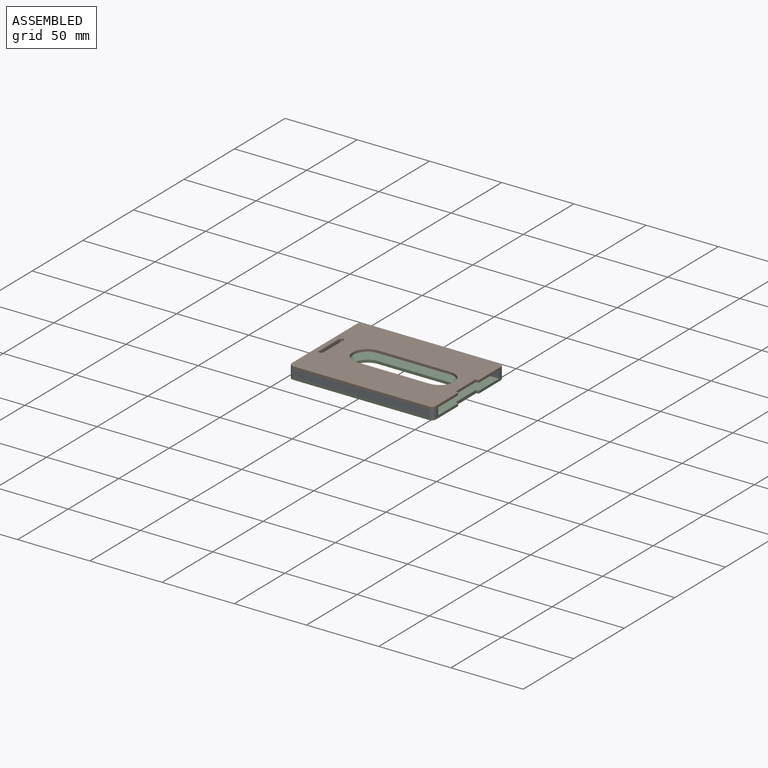
[diagram: assembled view]
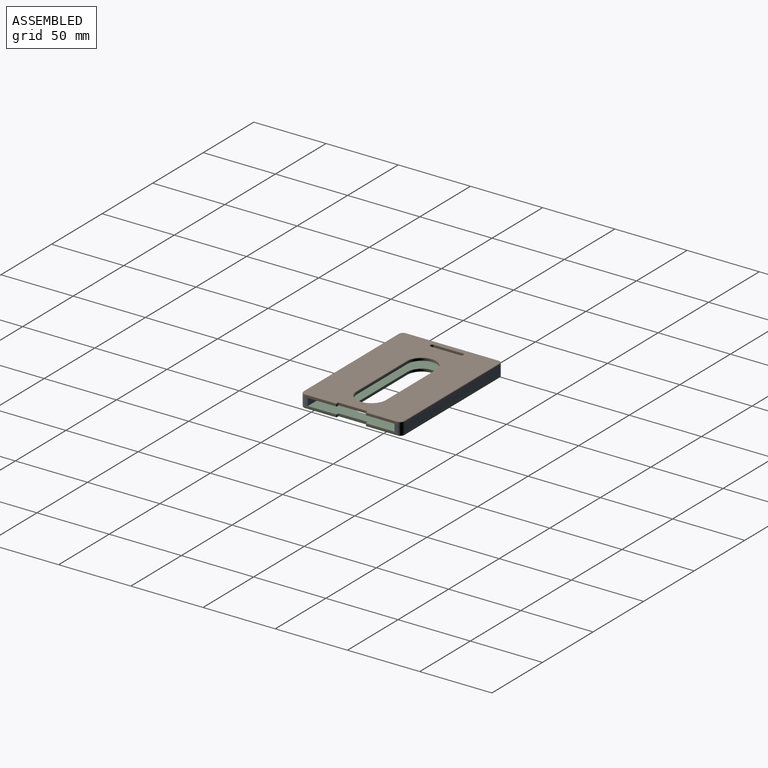
[diagram: assembled view, second angle]
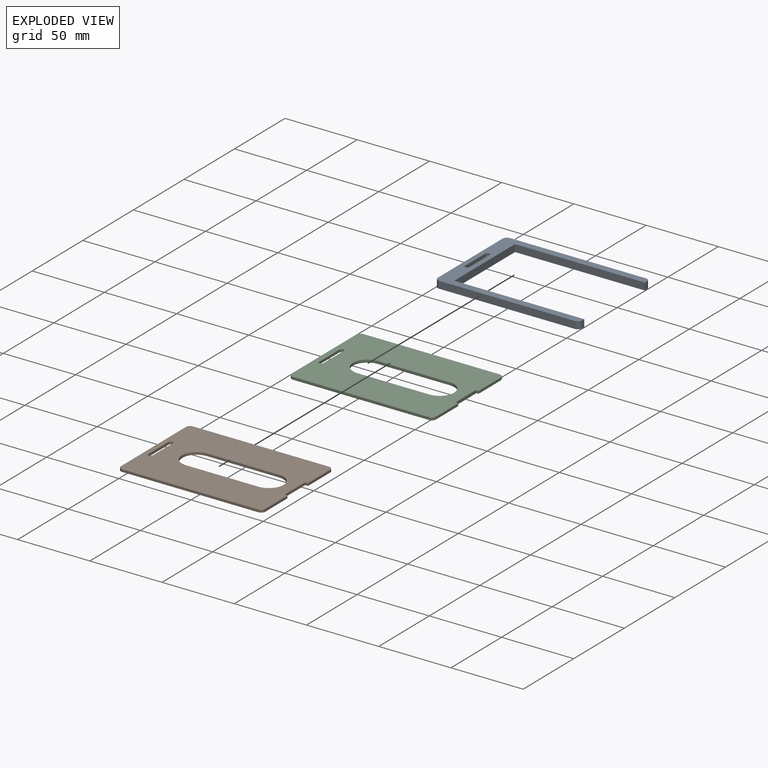
[diagram: exploded view]
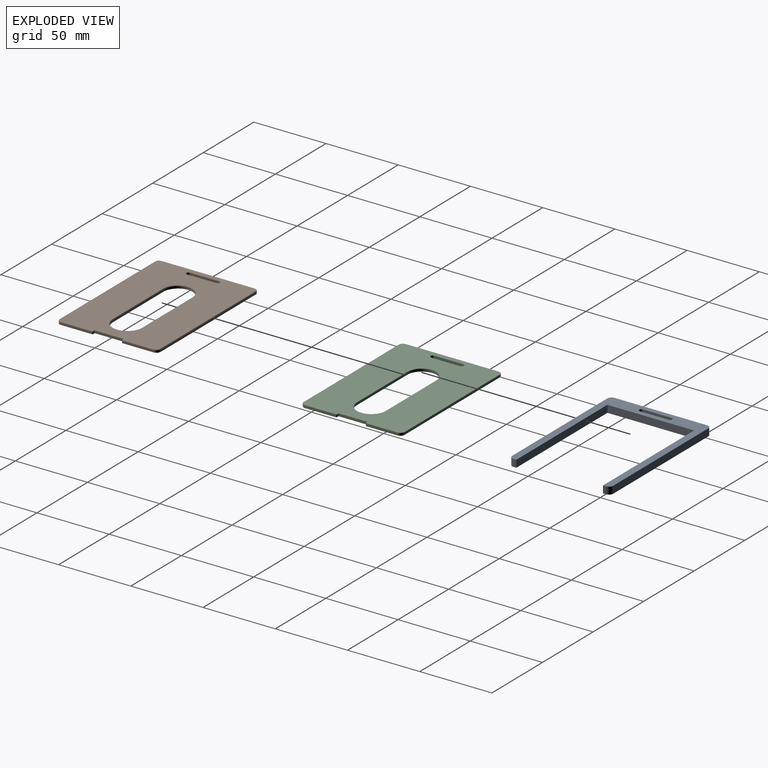
[diagram: exploded view, second angle]
ASSEMBLY  parts=3 mates=6
PART A: 18 faces, bbox 100x70x5 mm
  f0: plane 20x5mm, normal (1,0,0), area 100mm2, adj f1,f15,f16,f17
  f1: cylinder r=1.5mm len=5mm, axis (0,0,-1), area 23.6mm2, adj f0,f2,f16,f17
  f2: plane 20x5mm, normal (-1,0,0), area 100mm2, adj f1,f15,f16,f17
  f3: plane 94x5mm, normal (0,1,0), area 470mm2, adj f4,f14,f16,f17
  f4: cylinder r=3mm len=5mm, axis (0,0,-1), area 23.6mm2, adj f3,f5,f16,f17
  f5: plane 64x5mm, normal (-1,0,0), area 320mm2, adj f4,f6,f16,f17
  f6: cylinder r=3mm len=5mm, axis (0,0,-1), area 23.6mm2, adj f5,f7,f16,f17
  f7: plane 94x5mm, normal (0,-1,0), area 470mm2, adj f6,f8,f16,f17
  f8: cylinder r=3mm len=5mm, axis (0,0,-1), area 23.6mm2, adj f7,f9,f16,f17
  f9: plane 5x2mm, normal (1,0,0), area 10mm2, adj f8,f10,f16,f17
  f10: plane 90x5mm, normal (0,1,0), area 450mm2, adj f9,f11,f16,f17
  f11: plane 60x5mm, normal (1,0,0), area 300mm2, adj f10,f12,f16,f17
  f12: plane 90x5mm, normal (0,-1,0), area 450mm2, adj f11,f13,f16,f17
  f13: plane 5x2mm, normal (1,0,0), area 10mm2, adj f12,f14,f16,f17
  f14: cylinder r=3mm len=5mm, axis (0,0,-1), area 23.6mm2, adj f3,f13,f16,f17
  f15: cylinder r=1.5mm len=5mm, axis (0,0,-1), area 23.6mm2, adj f0,f2,f16,f17
  f16: plane 100x70mm, normal (0,0,1), area 1525.2mm2, adj f0,f1,f2,f3,f4,f5,f6,f7
  f17: plane 100x70mm, normal (0,0,-1), area 1525.2mm2, adj f0,f1,f2,f3,f4,f5,f6,f7
PART B: 46 faces, bbox 100.5x70.5x2 mm
  f0: plane 20x1.5mm, normal (1,0,0), area 30mm2, adj f1,f19,f21,f41
  f1: cylinder r=1.5mm len=3mm, axis (0,0,-1), area 7.1mm2, adj f0,f2,f21,f39
  f2: plane 20x1.5mm, normal (-1,0,0), area 30mm2, adj f1,f19,f21,f38
  f3: plane 1.5x1.5mm, normal (0,-1,0), area 2.3mm2, adj f17,f21,f33,f34
  f4: plane 21.5x1.5mm, normal (1,0,0), area 32.2mm2, adj f5,f21,f33,f37
  f5: cylinder r=3mm len=3mm, axis (0,0,-1), area 7.1mm2, adj f4,f6,f21,f35
  f6: plane 94x1.5mm, normal (0,1,0), area 141mm2, adj f5,f7,f21,f32
  f7: cylinder r=3mm len=3mm, axis (0,0,-1), area 7.1mm2, adj f6,f8,f21,f30
  f8: plane 64x1.5mm, normal (-1,0,0), area 96mm2, adj f7,f9,f21,f28
  f9: cylinder r=3mm len=3mm, axis (0,0,-1), area 7.1mm2, adj f8,f10,f21,f26
  f10: plane 94x1.5mm, normal (0,-1,0), area 141mm2, adj f9,f11,f21,f23
  f11: cylinder r=3mm len=3mm, axis (0,0,-1), area 7.1mm2, adj f10,f12,f21,f22
  f12: plane 21.5x1.5mm, normal (1,0,0), area 32.2mm2, adj f11,f21,f24,f25
  f13: plane 1.5x1.5mm, normal (0,1,0), area 2.3mm2, adj f17,f21,f24,f29
  f14: cylinder r=10mm len=20mm, axis (0,0,-1), area 47.1mm2, adj f15,f18,f21,f43
  f15: plane 50x1.5mm, normal (0,-1,0), area 75mm2, adj f14,f16,f21,f45
  f16: cylinder r=10mm len=20mm, axis (0,0,-1), area 47.1mm2, adj f15,f18,f21,f44
  f17: plane 20x1.5mm, normal (1,0,0), area 30mm2, adj f3,f13,f21,f31
  f18: plane 50x1.5mm, normal (0,1,0), area 75mm2, adj f14,f16,f21,f42
  f19: cylinder r=1.5mm len=3mm, axis (0,0,-1), area 7.1mm2, adj f0,f2,f21,f40
  f20: plane 99x69mm, normal (0,0,1), area 5294.7mm2, adj f22,f23,f25,f26,f28,f29,f30,f31
  f21: plane 100x70mm, normal (0,0,-1), area 5570.9mm2, adj f0,f1,f2,f3,f4,f5,f6,f7
  f22: torus R=2.5mm, axis (0,0,1), area 3.5mm2, adj f11,f20,f23,f25
  f23: cylinder r=0.5mm len=94mm, axis (-1,0,0), area 73.8mm2, adj f10,f20,f22,f26
  f24: cylinder r=0.5mm len=1.5mm, axis (0,0,1), area 1.2mm2, adj f12,f13,f21,f27
  f25: cylinder r=0.5mm len=21.5mm, axis (0,-1,0), area 16.9mm2, adj f12,f20,f22,f27
  f26: torus R=2.5mm, axis (0,0,1), area 3.5mm2, adj f9,f20,f23,f28
  f27: sphere r=0.5mm, area 0.4mm2, adj f24,f25,f29
  f28: cylinder r=0.5mm len=64mm, axis (0,1,0), area 50.3mm2, adj f8,f20,f26,f30
  f29: cylinder r=0.5mm len=2mm, axis (1,0,0), area 1.3mm2, adj f13,f20,f27,f31
  f30: torus R=2.5mm, axis (0,0,1), area 3.5mm2, adj f7,f20,f28,f32
  f31: cylinder r=0.5mm len=21mm, axis (0,-1,0), area 16mm2, adj f17,f20,f29,f34
  f32: cylinder r=0.5mm len=94mm, axis (1,0,0), area 73.8mm2, adj f6,f20,f30,f35
  f33: cylinder r=0.5mm len=1.5mm, axis (0,0,-1), area 1.2mm2, adj f3,f4,f21,f36
  f34: cylinder r=0.5mm len=2mm, axis (-1,0,0), area 1.3mm2, adj f3,f20,f31,f36
  f35: torus R=2.5mm, axis (0,0,1), area 3.5mm2, adj f5,f20,f32,f37
  f36: sphere r=0.5mm, area 0.4mm2, adj f33,f34,f37
  f37: cylinder r=0.5mm len=21.5mm, axis (0,-1,0), area 16.9mm2, adj f4,f20,f35,f36
  f38: cylinder r=0.5mm len=20mm, axis (0,1,0), area 15.7mm2, adj f2,f20,f39,f40
  f39: torus R=2mm, axis (0,0,1), area 4.1mm2, adj f1,f20,f38,f41
  f40: torus R=2mm, axis (0,0,1), area 4.1mm2, adj f19,f20,f38,f41
  f41: cylinder r=0.5mm len=20mm, axis (0,-1,0), area 15.7mm2, adj f0,f20,f39,f40
  f42: cylinder r=0.5mm len=50mm, axis (1,0,0), area 39.3mm2, adj f18,f20,f43,f44
  f43: torus R=10.5mm, axis (0,0,1), area 25.1mm2, adj f14,f20,f42,f45
  f44: torus R=10.5mm, axis (0,0,1), area 25.1mm2, adj f16,f20,f42,f45
  f45: cylinder r=0.5mm len=50mm, axis (-1,0,0), area 39.3mm2, adj f15,f20,f43,f44
PART C: same geometry as B
PLACE A rot(axis=(1,0,0),180deg) t=(12.33,-61.15,-17.1)mm
PLACE B t=(26.12,-69.91,-17.1)mm
PLACE C rot(axis=(1,0,0),180deg) t=(26.12,-58.25,-22.1)mm
MATE planar B.f10 <-> A.f3  axis (0,-1,0) through (12.04,-99.08,-16.35)mm
MATE planar B.f8 <-> A.f5  axis (-1,0,0) through (-37.96,-64.08,-16.35)mm
MATE planar A.f16 <-> C.f21  axis (0,0,-1) through (-3.68,-64.08,-22.1)mm
MATE planar A.f17 <-> B.f21  axis (0,0,1) through (-37.96,-32.08,-17.1)mm
MATE planar A.f7 <-> C.f10  axis (0,1,0) through (12.04,-29.08,-19.6)mm
MATE planar C.f8 <-> A.f5  axis (-1,0,0) through (-37.96,-64.08,-22.85)mm
